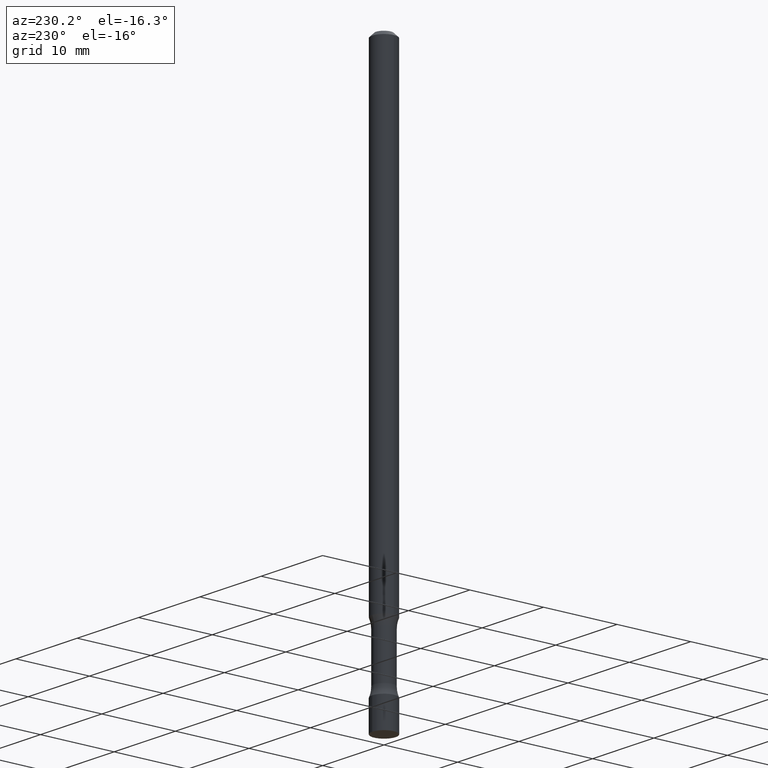
[diagram: clean part render]
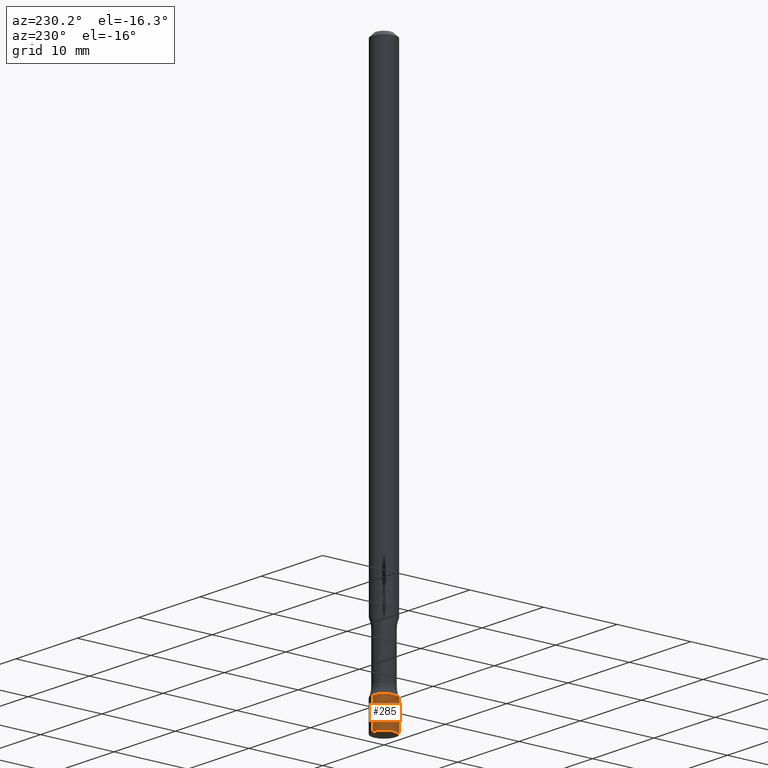
[diagram: same view with one face highlighted and labeled with its STEP entity id]
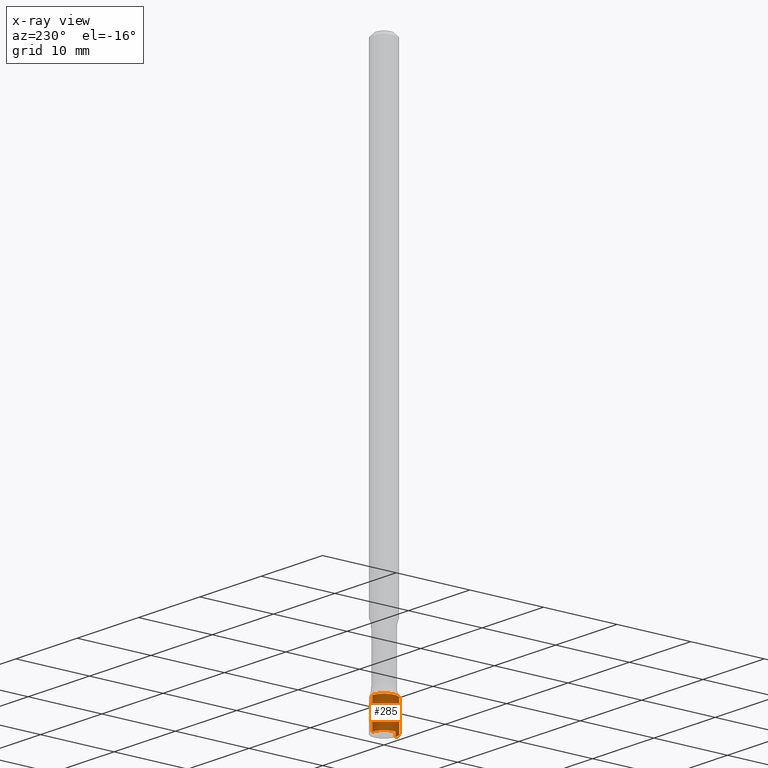
[diagram: x-ray of the same camera — body ghosted, the highlighted face saturated]
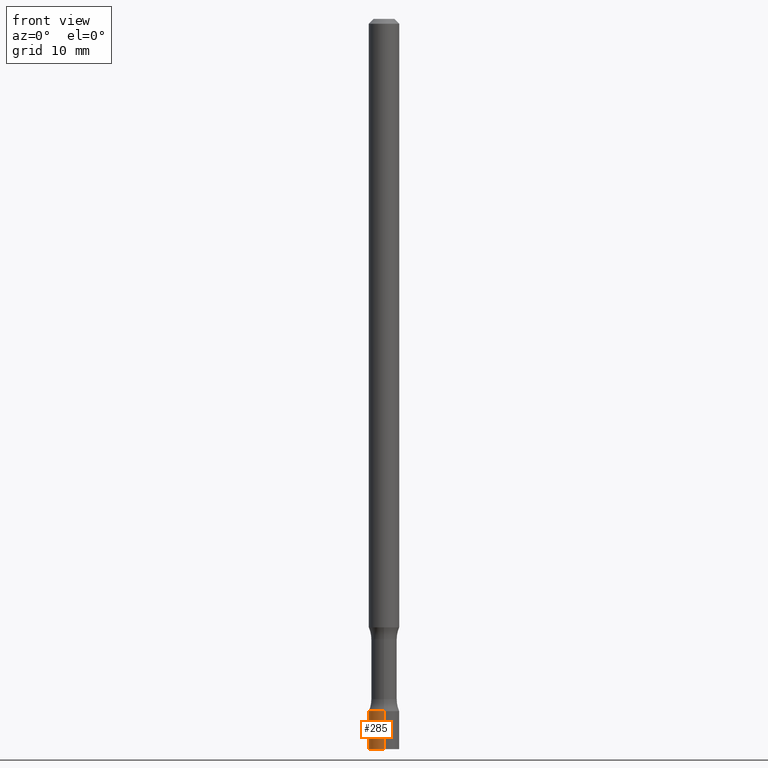
[diagram: same view with one face highlighted and labeled with its STEP entity id]
A machine part, auxiliary view. The second image highlights one B-rep face of the part: STEP entity #285.
The next image is the same camera in x-ray: the body ghosted, the highlighted face saturated — about 0% of this face is hidden behind the body in this view.
A second angle (front view) of the same face is appended — the face is thin or edge-on in the first view.
In plain terms, the highlighted cylindrical surface (edge-blend (fillet) strip) has radius 1.5875 mm, axis along (-0, 0, 1).
Its self-contained STEP definition (entity closure, byte-faithful):
#3 = CARTESIAN_POINT ( 'NONE',  ( 4.440892098500635036E-16, 0.06250000000000012490, -2.176388210955470377E-16 ) ) ;
#17 = CARTESIAN_POINT ( 'NONE',  ( 4.440892098501371635E-16, 0.06249999999999023004, -2.843800000000000328 ) ) ;
#23 = FACE_OUTER_BOUND ( 'NONE', #332, .T. ) ;
#25 = DIRECTION ( 'NONE',  ( -6.982962677686265922E-15, -1.000000000000000000, 3.482221137528745503E-15 ) ) ;
#28 = VECTOR ( 'NONE', #280, 39.37007874015748143 ) ;
#56 = AXIS2_PLACEMENT_3D ( 'NONE', #374, #106, #25 ) ;
#59 = EDGE_CURVE ( 'NONE', #86, #149, #201, .T. ) ;
#82 = EDGE_CURVE ( 'NONE', #388, #190, #329, .T. ) ;
#86 = VERTEX_POINT ( 'NONE', #17 ) ;
#106 = DIRECTION ( 'NONE',  ( -2.451935170201767991E-29, 3.482221137528745897E-15, 1.000000000000000000 ) ) ;
#131 = CARTESIAN_POINT ( 'NONE',  ( -4.364351673553925076E-16, -0.06250000000000012490, 2.176388210955470377E-16 ) ) ;
#132 = CARTESIAN_POINT ( 'NONE',  ( 6.972813237019788711E-29, -9.902740470904250327E-15, -2.843800000000000328 ) ) ;
#149 = VERTEX_POINT ( 'NONE', #479 ) ;
#157 = LINE ( 'NONE', #3, #221 ) ;
#163 = EDGE_CURVE ( 'NONE', #190, #149, #167, .T. ) ;
#167 = LINE ( 'NONE', #131, #28 ) ;
#190 = VERTEX_POINT ( 'NONE', #326 ) ;
#191 = AXIS2_PLACEMENT_3D ( 'NONE', #205, #207, #319 ) ;
#201 = CIRCLE ( 'NONE', #396, 0.06250000000000012490 ) ;
#205 = CARTESIAN_POINT ( 'NONE',  ( 7.355805510605304813E-29, -1.044666341258623809E-14, -3.000000000000000444 ) ) ;
#207 = DIRECTION ( 'NONE',  ( -2.451935170201767991E-29, 3.482221137528745897E-15, 1.000000000000000000 ) ) ;
#221 = VECTOR ( 'NONE', #350, 39.37007874015748143 ) ;
#254 = DIRECTION ( 'NONE',  ( -2.451935170201767991E-29, 3.482221137528745897E-15, 1.000000000000000000 ) ) ;
#280 = DIRECTION ( 'NONE',  ( -2.451935170201767991E-29, 3.482221137528745897E-15, 1.000000000000000000 ) ) ;
#285 = ADVANCED_FACE ( 'NONE', ( #23 ), #453, .T. ) ;
#299 = ORIENTED_EDGE ( 'NONE', *, *, #59, .F. ) ;
#319 = DIRECTION ( 'NONE',  ( -6.982962677686265922E-15, -1.000000000000000000, 0.000000000000000000 ) ) ;
#326 = CARTESIAN_POINT ( 'NONE',  ( -4.364351673553189463E-16, -0.06250000000001057487, -3.000000000000000444 ) ) ;
#329 = CIRCLE ( 'NONE', #191, 0.06250000000000012490 ) ;
#332 = EDGE_LOOP ( 'NONE', ( #503, #471, #391, #299 ) ) ;
#344 = CARTESIAN_POINT ( 'NONE',  ( 4.440892098501351914E-16, 0.06249999999998967493, -3.000000000000000444 ) ) ;
#350 = DIRECTION ( 'NONE',  ( -2.451935170201767991E-29, 3.482221137528745897E-15, 1.000000000000000000 ) ) ;
#373 = EDGE_CURVE ( 'NONE', #388, #86, #157, .T. ) ;
#374 = CARTESIAN_POINT ( 'NONE',  ( 0.000000000000000000, 0.000000000000000000, 0.000000000000000000 ) ) ;
#388 = VERTEX_POINT ( 'NONE', #344 ) ;
#391 = ORIENTED_EDGE ( 'NONE', *, *, #163, .T. ) ;
#396 = AXIS2_PLACEMENT_3D ( 'NONE', #132, #254, #438 ) ;
#438 = DIRECTION ( 'NONE',  ( -6.982962677686265922E-15, -1.000000000000000000, 0.000000000000000000 ) ) ;
#453 = CYLINDRICAL_SURFACE ( 'NONE', #56, 0.06250000000000012490 ) ;
#471 = ORIENTED_EDGE ( 'NONE', *, *, #82, .T. ) ;
#479 = CARTESIAN_POINT ( 'NONE',  ( -4.364351673553227427E-16, -0.06250000000001003364, -2.843800000000000328 ) ) ;
#503 = ORIENTED_EDGE ( 'NONE', *, *, #373, .F. ) ;